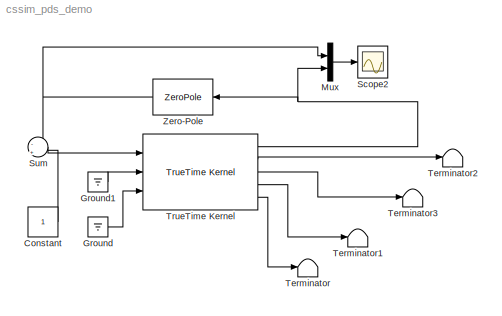
MODEL cssim_pds_demo
KIND model
BLOCK [Constant] Constant
  ConRadixGroup = Use specified scaling
  FramePeriod = inf
  OutDataType = sfix(16)
  OutDataTypeMode = Inherit from 'Constant value'
  OutScaling = 2^0
  SampleTime = inf
  SamplingMode = Sample based
  Value = 1
  VectorParams1D = on
BLOCK [Ground] Ground
BLOCK [Ground] Ground1
BLOCK [Mux] Mux
  DisplayOption = bar
  Inputs = 2
  Ports = [2, 1]
BLOCK [Scope] Scope2
  DataFormat = StructureWithTime
  Floating = off
  NumInputPorts = 1
  Ports = [1]
  SampleTime = 0
BLOCK [Sum] Sum
  IconShape = round
  InputSameDT = off
  Inputs = -|+
  OutDataTypeMode = Inherit via internal rule
  Ports = [2, 1]
  SaturateOnIntegerOverflow = off
BLOCK [Terminator] Terminator
BLOCK [Terminator] Terminator1
BLOCK [Terminator] Terminator2
BLOCK [Terminator] Terminator3
BLOCK [Reference] TrueTime Kernel  REF=truetime/TrueTime Kernel  (lib defined in slx_0362a698a4ec)
  FunctionWithSeparateData = off
  Ports = [3, 5]
  RTWMemSecDataConstants = Inherit from model
  RTWMemSecDataInternal = Inherit from model
  RTWMemSecDataParameters = Inherit from model
  RTWMemSecFuncExecute = Inherit from model
  RTWMemSecFuncInitTerm = Inherit from model
  ShowPortLabels = on
  SourceBlock = truetime/TrueTime Kernel
  SystemSampleTime = -1
  args = 0
  battery = off
  clockdrift = 0
  clockoffset = 0
  sfun = simple_init
BLOCK [ZeroPole] Zero-Pole
  Poles = [0 -1 -1]
  Zeros = []
LINE Constant:1 -> Sum:2
LINE Ground1:1 -> TrueTime Kernel:2
LINE Ground:1 -> TrueTime Kernel:3
LINE Mux:1 -> Scope2:1
LINE Sum:1 -> TrueTime Kernel:1
NET TrueTime Kernel:1 -> Mux:2, Zero-Pole:1
LINE TrueTime Kernel:2 -> Terminator2:1
LINE TrueTime Kernel:3 -> Terminator3:1
LINE TrueTime Kernel:4 -> Terminator1:1
LINE TrueTime Kernel:5 -> Terminator:1
NET Zero-Pole:1 -> Mux:1, Sum:1
note: NET lines group one-source signal fan-out (src -> all destinations, sorted); 1:1 wires keep LINE
